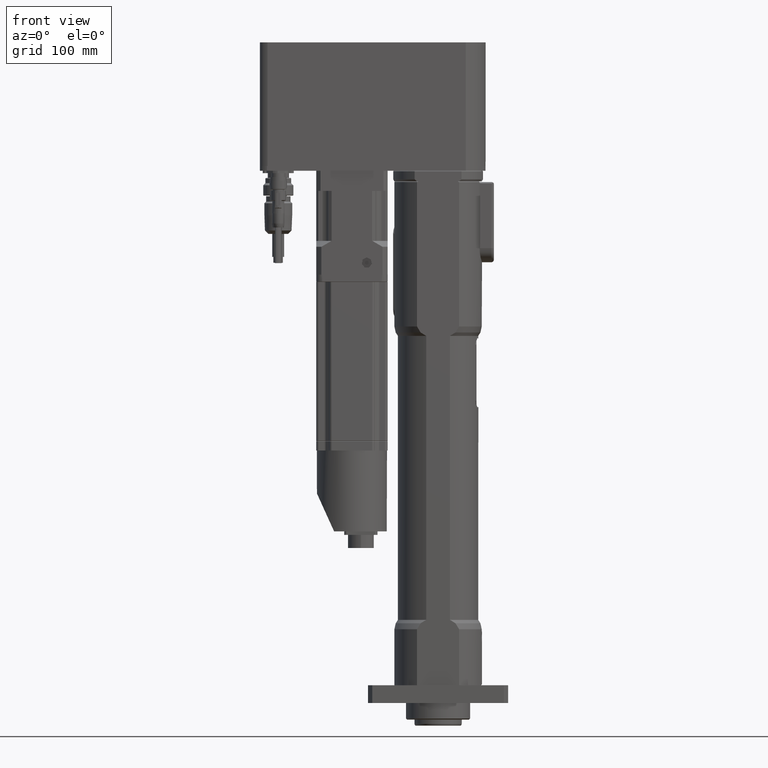
[diagram: clean part render]
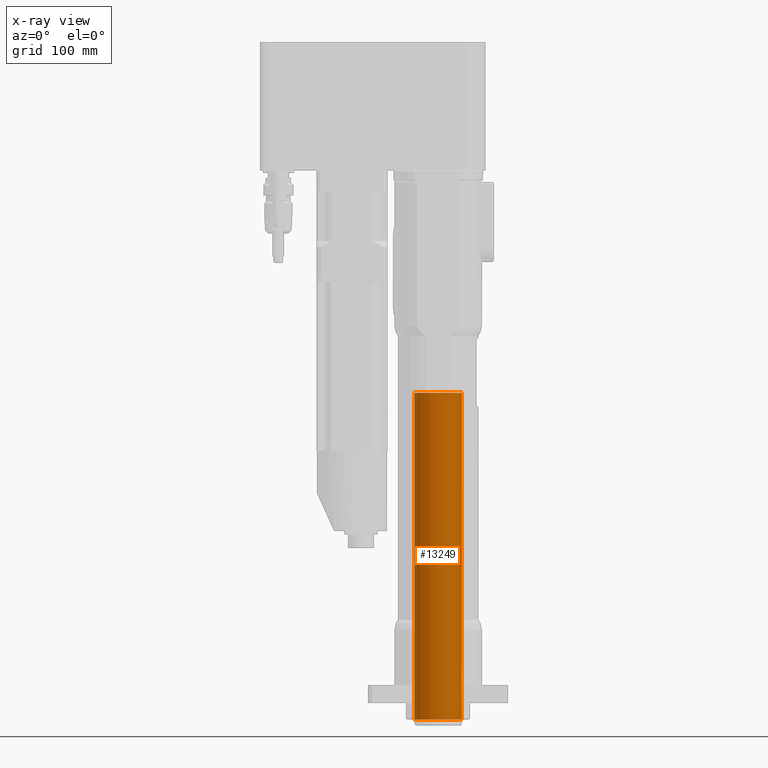
[diagram: x-ray — body ghosted, one internal face saturated and labeled with its STEP entity id]
A machine part, front view, then the same camera in x-ray: the body is ghosted and one INTERNAL B-rep face — a face not visible from any outside direction — is saturated and labeled: STEP entity #13249.
In plain terms, the highlighted cylindrical surface (bore or boss wall) has radius 20 mm, axis along (0, 0, 1).
Its self-contained STEP definition (entity closure, byte-faithful):
#486=LINE('',#22731,#1421);
#526=LINE('',#22823,#1461);
#1421=VECTOR('',#16096,10.);
#1461=VECTOR('',#16182,10.);
#2267=B_SPLINE_CURVE_WITH_KNOTS('',3,(#24442,#24443,#24444,#24445,#24446,
#24447,#24448,#24449,#24450,#24451,#24452,#24453,#24454,#24455,#24456,#24457,
#24458,#24459,#24460,#24461,#24462,#24463,#24464,#24465,#24466,#24467,#24468,
#24469,#24470,#24471,#24472,#24473,#24474,#24475),.UNSPECIFIED.,.T.,.F.,
(4,2,2,2,2,2,2,2,2,2,2,2,2,2,2,2,4),(0.,0.0610897130723132,0.122179426144626,
0.183269049775174,0.244358673405721,0.305448297036269,0.366537920666816,
0.427627633739129,0.488717346811442,0.549807059883755,0.610896772956069,
0.671986396586616,0.733076020217163,0.794165643847711,0.855255267478258,
0.916344980550571,0.977434693622885),.UNSPECIFIED.);
#2268=B_SPLINE_CURVE_WITH_KNOTS('',3,(#24477,#24478,#24479,#24480,#24481,
#24482,#24483,#24484,#24485,#24486,#24487,#24488,#24489,#24490,#24491,#24492,
#24493,#24494,#24495,#24496,#24497,#24498,#24499,#24500,#24501,#24502,#24503,
#24504,#24505,#24506,#24507,#24508,#24509,#24510),.UNSPECIFIED.,.T.,.F.,
(4,2,2,2,2,2,2,2,2,2,2,2,2,2,2,2,4),(0.,0.0610897130723132,0.122179426144626,
0.183269049775174,0.244358673405721,0.305448297036269,0.366537920666816,
0.427627633739129,0.488717346811442,0.549807059883756,0.610896772956069,
0.671986396586616,0.733076020217164,0.794165643847711,0.855255267478258,
0.916344980550571,0.977434693622885),.UNSPECIFIED.);
#2783=FACE_BOUND('',#4322,.T.);
#2784=FACE_BOUND('',#4323,.T.);
#2785=FACE_BOUND('',#4324,.T.);
#2786=FACE_BOUND('',#4325,.T.);
#3404=FACE_OUTER_BOUND('',#4321,.T.);
#4321=EDGE_LOOP('',(#10677));
#4322=EDGE_LOOP('',(#10678,#10679,#10680,#10681));
#4323=EDGE_LOOP('',(#10682));
#4324=EDGE_LOOP('',(#10683));
#4325=EDGE_LOOP('',(#10684));
#4782=CIRCLE('',#13926,20.);
#4788=CIRCLE('',#13946,20.);
#5077=CIRCLE('',#14547,20.);
#5078=CIRCLE('',#14548,20.);
#5656=VERTEX_POINT('',#22729);
#5657=VERTEX_POINT('',#22730);
#5662=VERTEX_POINT('',#22742);
#5686=VERTEX_POINT('',#22819);
#6133=VERTEX_POINT('',#24439);
#6134=VERTEX_POINT('',#24441);
#6135=VERTEX_POINT('',#24476);
#6136=VERTEX_POINT('',#24511);
#6974=EDGE_CURVE('',#5656,#5657,#486,.T.);
#6980=EDGE_CURVE('',#5662,#5656,#4782,.T.);
#7019=EDGE_CURVE('',#5657,#5686,#4788,.T.);
#7021=EDGE_CURVE('',#5686,#5662,#526,.T.);
#7728=EDGE_CURVE('',#6133,#6133,#5077,.T.);
#7729=EDGE_CURVE('',#6134,#6134,#2267,.T.);
#7730=EDGE_CURVE('',#6135,#6135,#2268,.T.);
#7731=EDGE_CURVE('',#6136,#6136,#5078,.T.);
#10677=ORIENTED_EDGE('',*,*,#7728,.T.);
#10678=ORIENTED_EDGE('',*,*,#6980,.T.);
#10679=ORIENTED_EDGE('',*,*,#6974,.T.);
#10680=ORIENTED_EDGE('',*,*,#7019,.T.);
#10681=ORIENTED_EDGE('',*,*,#7021,.T.);
#10682=ORIENTED_EDGE('',*,*,#7729,.T.);
#10683=ORIENTED_EDGE('',*,*,#7730,.T.);
#10684=ORIENTED_EDGE('',*,*,#7731,.F.);
#11836=CYLINDRICAL_SURFACE('',#14546,20.);
#13249=ADVANCED_FACE('',(#3404,#2783,#2784,#2785,#2786),#11836,.F.);
#13926=AXIS2_PLACEMENT_3D('',#22743,#16104,#16105);
#13946=AXIS2_PLACEMENT_3D('',#22820,#16177,#16178);
#14546=AXIS2_PLACEMENT_3D('',#24438,#17768,#17769);
#14547=AXIS2_PLACEMENT_3D('',#24440,#17770,#17771);
#14548=AXIS2_PLACEMENT_3D('',#24512,#17772,#17773);
#16096=DIRECTION('',(0.,0.,-1.));
#16104=DIRECTION('center_axis',(0.,-3.24731666659712E-16,-1.));
#16105=DIRECTION('ref_axis',(-1.,0.,0.));
#16177=DIRECTION('center_axis',(0.,-7.17765564207009E-17,1.));
#16178=DIRECTION('ref_axis',(-1.,0.,0.));
#16182=DIRECTION('',(0.,0.,1.));
#17768=DIRECTION('center_axis',(0.,0.,1.));
#17769=DIRECTION('ref_axis',(-1.,0.,0.));
#17770=DIRECTION('center_axis',(0.,0.,1.));
#17771=DIRECTION('ref_axis',(-1.,0.,0.));
#17772=DIRECTION('center_axis',(0.,0.,1.));
#17773=DIRECTION('ref_axis',(-1.,0.,0.));
#22729=CARTESIAN_POINT('',(19.7737199332852,-3.,40.5));
#22730=CARTESIAN_POINT('',(19.7737199332852,-3.,30.5));
#22731=CARTESIAN_POINT('',(19.7737199332852,-3.,0.));
#22742=CARTESIAN_POINT('',(19.7737199332852,3.,40.5));
#22743=CARTESIAN_POINT('Origin',(0.,0.,40.5));
#22819=CARTESIAN_POINT('',(19.7737199332852,3.,30.5));
#22820=CARTESIAN_POINT('Origin',(0.,0.,30.5));
#22823=CARTESIAN_POINT('',(19.7737199332852,3.,0.));
#24438=CARTESIAN_POINT('Origin',(0.,0.,0.));
#24439=CARTESIAN_POINT('',(-20.,2.44929359829471E-15,275.));
#24440=CARTESIAN_POINT('Origin',(0.,0.,275.));
#24441=CARTESIAN_POINT('',(19.9342007364228,1.621,66.5));
#24442=CARTESIAN_POINT('Ctrl Pts',(19.9342007364228,1.621,66.5));
#24443=CARTESIAN_POINT('Ctrl Pts',(19.9342007364228,1.621,66.7036323769077));
#24444=CARTESIAN_POINT('Ctrl Pts',(19.9376422779811,1.58028572586809,66.9207766320505));
#24445=CARTESIAN_POINT('Ctrl Pts',(19.9500662017881,1.41482900197542,67.3201310063557));
#24446=CARTESIAN_POINT('Ctrl Pts',(19.9588684857962,1.29009144814773,67.502348736459));
#24447=CARTESIAN_POINT('Ctrl Pts',(19.9753864469583,1.00234894710185,67.7900912375049));
#24448=CARTESIAN_POINT('Ctrl Pts',(19.9841760998482,0.82013112383623,67.9148289545461));
#24449=CARTESIAN_POINT('Ctrl Pts',(19.9965711219685,0.420776441290678,68.0802858036578));
#24450=CARTESIAN_POINT('Ctrl Pts',(20.,0.203632078768491,68.121));
#24451=CARTESIAN_POINT('Ctrl Pts',(20.,-0.203632078768491,68.121));
#24452=CARTESIAN_POINT('Ctrl Pts',(19.9965711219685,-0.420776441290678,
68.0802858036578));
#24453=CARTESIAN_POINT('Ctrl Pts',(19.9841760998482,-0.82013112383623,67.9148289545461));
#24454=CARTESIAN_POINT('Ctrl Pts',(19.9753864469583,-1.00234894710185,67.7900912375049));
#24455=CARTESIAN_POINT('Ctrl Pts',(19.9588684857962,-1.29009144814773,67.502348736459));
#24456=CARTESIAN_POINT('Ctrl Pts',(19.9500662017881,-1.41482900197542,67.3201310063557));
#24457=CARTESIAN_POINT('Ctrl Pts',(19.9376422779811,-1.58028572586809,66.9207766320505));
#24458=CARTESIAN_POINT('Ctrl Pts',(19.9342007364228,-1.621,66.7036323769077));
#24459=CARTESIAN_POINT('Ctrl Pts',(19.9342007364228,-1.621,66.2963676230923));
#24460=CARTESIAN_POINT('Ctrl Pts',(19.9376422779811,-1.58028572586809,66.0792233679495));
#24461=CARTESIAN_POINT('Ctrl Pts',(19.9500662017881,-1.41482900197542,65.6798689936443));
#24462=CARTESIAN_POINT('Ctrl Pts',(19.9588684857962,-1.29009144814773,65.4976512635409));
#24463=CARTESIAN_POINT('Ctrl Pts',(19.9753864469583,-1.00234894710185,65.209908762495));
#24464=CARTESIAN_POINT('Ctrl Pts',(19.9841760998482,-0.82013112383623,65.0851710454539));
#24465=CARTESIAN_POINT('Ctrl Pts',(19.9965711219685,-0.420776441290678,
64.9197141963422));
#24466=CARTESIAN_POINT('Ctrl Pts',(20.,-0.203632078768491,64.879));
#24467=CARTESIAN_POINT('Ctrl Pts',(20.,0.203632078768491,64.879));
#24468=CARTESIAN_POINT('Ctrl Pts',(19.9965711219685,0.420776441290678,64.9197141963422));
#24469=CARTESIAN_POINT('Ctrl Pts',(19.9841760998482,0.82013112383623,65.0851710454539));
#24470=CARTESIAN_POINT('Ctrl Pts',(19.9753864469583,1.00234894710185,65.209908762495));
#24471=CARTESIAN_POINT('Ctrl Pts',(19.9588684857962,1.29009144814773,65.4976512635409));
#24472=CARTESIAN_POINT('Ctrl Pts',(19.9500662017881,1.41482900197542,65.6798689936443));
#24473=CARTESIAN_POINT('Ctrl Pts',(19.9376422779811,1.58028572586809,66.0792233679495));
#24474=CARTESIAN_POINT('Ctrl Pts',(19.9342007364228,1.621,66.2963676230923));
#24475=CARTESIAN_POINT('Ctrl Pts',(19.9342007364228,1.621,66.5));
#24476=CARTESIAN_POINT('',(19.9342007364228,1.621,54.5));
#24477=CARTESIAN_POINT('Ctrl Pts',(19.9342007364228,1.621,54.5));
#24478=CARTESIAN_POINT('Ctrl Pts',(19.9342007364228,1.621,54.7036323769077));
#24479=CARTESIAN_POINT('Ctrl Pts',(19.9376422779811,1.58028572586809,54.9207766320505));
#24480=CARTESIAN_POINT('Ctrl Pts',(19.9500662017881,1.41482900197542,55.3201310063557));
#24481=CARTESIAN_POINT('Ctrl Pts',(19.9588684857962,1.29009144814773,55.502348736459));
#24482=CARTESIAN_POINT('Ctrl Pts',(19.9753864469583,1.00234894710185,55.7900912375049));
#24483=CARTESIAN_POINT('Ctrl Pts',(19.9841760998482,0.820131123836241,55.9148289545461));
#24484=CARTESIAN_POINT('Ctrl Pts',(19.9965711219685,0.420776441290689,56.0802858036578));
#24485=CARTESIAN_POINT('Ctrl Pts',(20.,0.203632078768491,56.121));
#24486=CARTESIAN_POINT('Ctrl Pts',(20.,-0.203632078768492,56.121));
#24487=CARTESIAN_POINT('Ctrl Pts',(19.9965711219685,-0.420776441290678,
56.0802858036578));
#24488=CARTESIAN_POINT('Ctrl Pts',(19.9841760998482,-0.82013112383623,55.9148289545461));
#24489=CARTESIAN_POINT('Ctrl Pts',(19.9753864469583,-1.00234894710185,55.7900912375049));
#24490=CARTESIAN_POINT('Ctrl Pts',(19.9588684857962,-1.29009144814773,55.502348736459));
#24491=CARTESIAN_POINT('Ctrl Pts',(19.9500662017881,-1.41482900197542,55.3201310063557));
#24492=CARTESIAN_POINT('Ctrl Pts',(19.9376422779811,-1.58028572586809,54.9207766320505));
#24493=CARTESIAN_POINT('Ctrl Pts',(19.9342007364228,-1.621,54.7036323769077));
#24494=CARTESIAN_POINT('Ctrl Pts',(19.9342007364228,-1.621,54.2963676230923));
#24495=CARTESIAN_POINT('Ctrl Pts',(19.9376422779811,-1.58028572586809,54.0792233679495));
#24496=CARTESIAN_POINT('Ctrl Pts',(19.9500662017881,-1.41482900197542,53.6798689936443));
#24497=CARTESIAN_POINT('Ctrl Pts',(19.9588684857962,-1.29009144814773,53.4976512635409));
#24498=CARTESIAN_POINT('Ctrl Pts',(19.9753864469583,-1.00234894710185,53.2099087624951));
#24499=CARTESIAN_POINT('Ctrl Pts',(19.9841760998482,-0.82013112383623,53.0851710454539));
#24500=CARTESIAN_POINT('Ctrl Pts',(19.9965711219685,-0.420776441290678,
52.9197141963422));
#24501=CARTESIAN_POINT('Ctrl Pts',(20.,-0.203632078768491,52.879));
#24502=CARTESIAN_POINT('Ctrl Pts',(20.,0.203632078768491,52.879));
#24503=CARTESIAN_POINT('Ctrl Pts',(19.9965711219685,0.420776441290678,52.9197141963422));
#24504=CARTESIAN_POINT('Ctrl Pts',(19.9841760998482,0.82013112383623,53.0851710454539));
#24505=CARTESIAN_POINT('Ctrl Pts',(19.9753864469583,1.00234894710185,53.2099087624951));
#24506=CARTESIAN_POINT('Ctrl Pts',(19.9588684857962,1.29009144814773,53.4976512635409));
#24507=CARTESIAN_POINT('Ctrl Pts',(19.9500662017881,1.41482900197542,53.6798689936443));
#24508=CARTESIAN_POINT('Ctrl Pts',(19.9376422779811,1.58028572586809,54.0792233679495));
#24509=CARTESIAN_POINT('Ctrl Pts',(19.9342007364228,1.621,54.2963676230923));
#24510=CARTESIAN_POINT('Ctrl Pts',(19.9342007364228,1.621,54.5));
#24511=CARTESIAN_POINT('',(20.,2.44929359829471E-15,0.));
#24512=CARTESIAN_POINT('Origin',(0.,0.,0.));